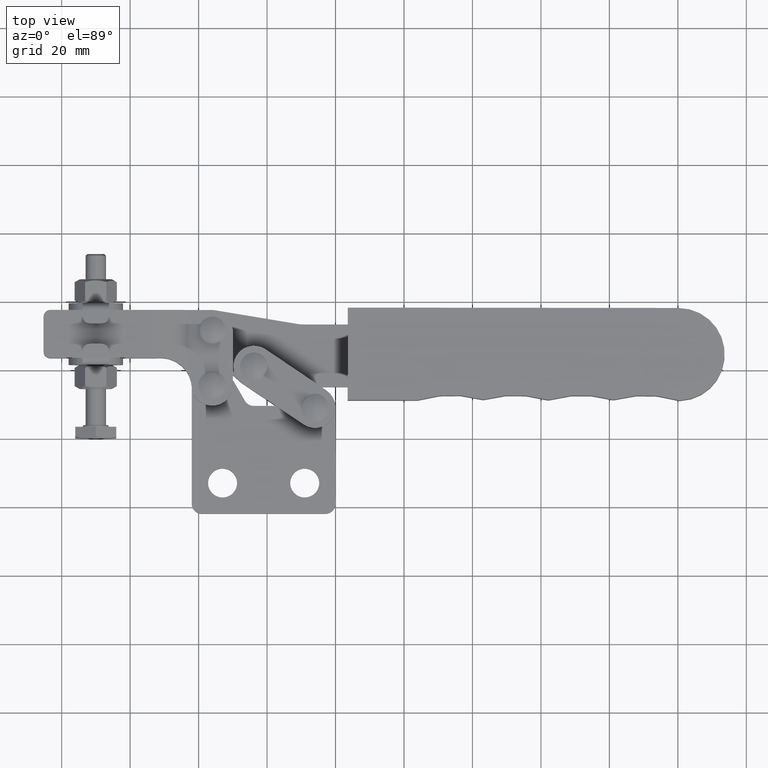
[diagram: clean part render]
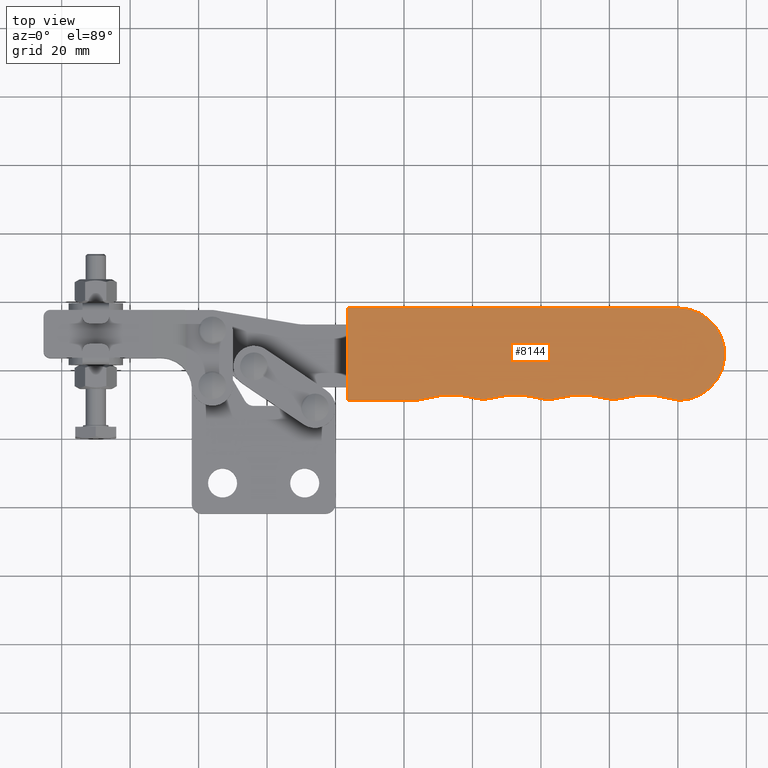
[diagram: same view with one face highlighted and labeled with its STEP entity id]
A machine part, top view. The second image highlights one B-rep face of the part: STEP entity #8144.
In plain terms, the highlighted planar face has unit normal (0, 0, 1).
Its self-contained STEP definition (entity closure, byte-faithful):
#44 = CARTESIAN_POINT ( 'NONE',  ( 3.545043072267930000, 11.15532445065293700, 6.999999999999999100 ) ) ;
#56 = LINE ( 'NONE', #7850, #3553 ) ;
#137 = ORIENTED_EDGE ( 'NONE', *, *, #1596, .T. ) ;
#262 = CIRCLE ( 'NONE', #8166, 31.99999999999996100 ) ;
#466 = CARTESIAN_POINT ( 'NONE',  ( 63.00042372646179000, 11.33479812045718500, 6.999999999999999100 ) ) ;
#702 = ORIENTED_EDGE ( 'NONE', *, *, #1793, .T. ) ;
#712 = ORIENTED_EDGE ( 'NONE', *, *, #4342, .T. ) ;
#840 = VECTOR ( 'NONE', #7962, 1000.000000000000100 ) ;
#897 = ORIENTED_EDGE ( 'NONE', *, *, #6737, .T. ) ;
#981 = AXIS2_PLACEMENT_3D ( 'NONE', #5616, #4913, #1039 ) ;
#1014 = CARTESIAN_POINT ( 'NONE',  ( 43.97827483815525100, 11.42371436769448700, 6.999999999999999100 ) ) ;
#1039 = DIRECTION ( 'NONE',  ( 0.9999993301781756600, -0.001157429565958452200, 0.0000000000000000000 ) ) ;
#1191 = CARTESIAN_POINT ( 'NONE',  ( 90.50966387902275300, -19.46204103600163300, 6.999999999999999100 ) ) ;
#1210 = ORIENTED_EDGE ( 'NONE', *, *, #8665, .T. ) ;
#1219 = ORIENTED_EDGE ( 'NONE', *, *, #1501, .T. ) ;
#1318 = ORIENTED_EDGE ( 'NONE', *, *, #6232, .T. ) ;
#1409 = DIRECTION ( 'NONE',  ( 0.0000000000000000000, 0.0000000000000000000, 1.000000000000000000 ) ) ;
#1501 = EDGE_CURVE ( 'NONE', #2984, #2148, #2331, .T. ) ;
#1504 = AXIS2_PLACEMENT_3D ( 'NONE', #6326, #1773, #3520 ) ;
#1540 = CARTESIAN_POINT ( 'NONE',  ( 100.2059568025393000, 38.04346426149196200, 6.999999999999999100 ) ) ;
#1596 = EDGE_CURVE ( 'NONE', #7579, #7498, #262, .T. ) ;
#1773 = DIRECTION ( 'NONE',  ( 0.0000000000000000000, 0.0000000000000000000, 1.000000000000000000 ) ) ;
#1793 = EDGE_CURVE ( 'NONE', #3628, #6571, #4909, .T. ) ;
#1847 = ORIENTED_EDGE ( 'NONE', *, *, #6397, .T. ) ;
#1857 = ORIENTED_EDGE ( 'NONE', *, *, #3375, .T. ) ;
#1872 = CARTESIAN_POINT ( 'NONE',  ( 3.576293670548810400, 38.15530636546370900, 6.999999999999999100 ) ) ;
#1950 = ORIENTED_EDGE ( 'NONE', *, *, #2554, .T. ) ;
#2093 = CARTESIAN_POINT ( 'NONE',  ( 23.72323925246362500, 11.13196959416267600, 6.999999999999999100 ) ) ;
#2109 = AXIS2_PLACEMENT_3D ( 'NONE', #3399, #8463, #2293 ) ;
#2148 = VERTEX_POINT ( 'NONE', #5811 ) ;
#2173 = CARTESIAN_POINT ( 'NONE',  ( 80.37191809346006700, 11.38159126076358200, 6.999999999999999100 ) ) ;
#2210 = CARTESIAN_POINT ( 'NONE',  ( 61.34961434249166200, 11.33670881732599700, 6.999999999999999100 ) ) ;
#2257 = ORIENTED_EDGE ( 'NONE', *, *, #4791, .T. ) ;
#2293 = DIRECTION ( 'NONE',  ( 0.9999993301781756600, -0.001157429565958487100, 0.0000000000000000000 ) ) ;
#2331 = CIRCLE ( 'NONE', #7056, 31.99999999999991800 ) ;
#2395 = EDGE_LOOP ( 'NONE', ( #897, #1318, #137, #1950, #1210, #1847, #3534, #702, #2439, #1219, #1857, #2257, #712 ) ) ;
#2424 = VERTEX_POINT ( 'NONE', #2173 ) ;
#2439 = ORIENTED_EDGE ( 'NONE', *, *, #6506, .T. ) ;
#2554 = EDGE_CURVE ( 'NONE', #7498, #3831, #3251, .T. ) ;
#2610 = DIRECTION ( 'NONE',  ( 0.9999993301781756600, -0.001157429565958546100, 0.0000000000000000000 ) ) ;
#2926 = DIRECTION ( 'NONE',  ( 0.9999993301781755500, -0.001157429565958516300, 0.0000000000000000000 ) ) ;
#2984 = VERTEX_POINT ( 'NONE', #3469 ) ;
#2986 = CIRCLE ( 'NONE', #3973, 3.000000000000076400 ) ;
#3032 = DIRECTION ( 'NONE',  ( 0.0000000000000000000, 0.0000000000000000000, 1.000000000000000000 ) ) ;
#3070 = PLANE ( 'NONE',  #3698 ) ;
#3251 = CIRCLE ( 'NONE', #981, 3.000000000000145700 ) ;
#3375 = EDGE_CURVE ( 'NONE', #2148, #6749, #3836, .T. ) ;
#3399 = CARTESIAN_POINT ( 'NONE',  ( 43.17845472933616700, 14.31513059396301900, 6.999999999999999100 ) ) ;
#3415 = DIRECTION ( 'NONE',  ( 0.9999993301781756600, -0.001157429565958478800, 0.0000000000000000000 ) ) ;
#3469 = CARTESIAN_POINT ( 'NONE',  ( 24.58749263178653500, 11.25811026151241600, 6.999999999999999100 ) ) ;
#3520 = DIRECTION ( 'NONE',  ( 0.9999993301781755500, -0.001157429565958496800, 0.0000000000000000000 ) ) ;
#3534 = ORIENTED_EDGE ( 'NONE', *, *, #4261, .T. ) ;
#3539 = VERTEX_POINT ( 'NONE', #7027 ) ;
#3553 = VECTOR ( 'NONE', #6996, 1000.000000000000100 ) ;
#3628 = VERTEX_POINT ( 'NONE', #44 ) ;
#3641 = DIRECTION ( 'NONE',  ( 0.0000000000000000000, 0.0000000000000000000, 1.000000000000000000 ) ) ;
#3698 = AXIS2_PLACEMENT_3D ( 'NONE', #3785, #3032, #2926 ) ;
#3785 = CARTESIAN_POINT ( 'NONE',  ( 71.76913214523121100, -19.44035017596214100, 6.999999999999999100 ) ) ;
#3791 = AXIS2_PLACEMENT_3D ( 'NONE', #5237, #5682, #4359 ) ;
#3831 = VERTEX_POINT ( 'NONE', #5330 ) ;
#3836 = CIRCLE ( 'NONE', #2109, 3.000000000000055500 ) ;
#3888 = CARTESIAN_POINT ( 'NONE',  ( 33.76915759846050900, -19.39636785245572200, 6.999999999999999100 ) ) ;
#3960 = DIRECTION ( 'NONE',  ( 0.9999993301781756600, -0.001157429565958484500, 0.0000000000000000000 ) ) ;
#3973 = AXIS2_PLACEMENT_3D ( 'NONE', #5801, #3641, #3415 ) ;
#4261 = EDGE_CURVE ( 'NONE', #3539, #3628, #56, .T. ) ;
#4342 = EDGE_CURVE ( 'NONE', #8379, #4863, #5697, .T. ) ;
#4359 = DIRECTION ( 'NONE',  ( 0.9999993301781756600, -0.001157429565958547600, 0.0000000000000000000 ) ) ;
#4598 = AXIS2_PLACEMENT_3D ( 'NONE', #6851, #8395, #7784 ) ;
#4600 = DIRECTION ( 'NONE',  ( -0.0000000000000000000, 0.0000000000000000000, -1.000000000000000000 ) ) ;
#4791 = EDGE_CURVE ( 'NONE', #6749, #8379, #6682, .T. ) ;
#4838 = DIRECTION ( 'NONE',  ( 0.0000000000000000000, 0.0000000000000000000, 1.000000000000000000 ) ) ;
#4863 = VERTEX_POINT ( 'NONE', #466 ) ;
#4909 = LINE ( 'NONE', #6271, #8556 ) ;
#4913 = DIRECTION ( 'NONE',  ( 0.0000000000000000000, 0.0000000000000000000, 1.000000000000000000 ) ) ;
#4930 = CARTESIAN_POINT ( 'NONE',  ( 81.97824938492850300, 11.37973204418876500, 6.999999999999999100 ) ) ;
#4944 = CARTESIAN_POINT ( 'NONE',  ( 62.17835731220214500, 14.21996827324658200, 6.999999999999999100 ) ) ;
#4946 = AXIS2_PLACEMENT_3D ( 'NONE', #4944, #1409, #6138 ) ;
#5029 = DIRECTION ( 'NONE',  ( 0.9999993301781756600, -0.001157429565958547600, 0.0000000000000000000 ) ) ;
#5127 = CIRCLE ( 'NONE', #8393, 3.000000000000062200 ) ;
#5237 = CARTESIAN_POINT ( 'NONE',  ( 71.76913214523121100, -19.44035017596214100, 6.999999999999999100 ) ) ;
#5330 = CARTESIAN_POINT ( 'NONE',  ( 100.7187293448377700, 11.05381816686496200, 6.999999999999999100 ) ) ;
#5616 = CARTESIAN_POINT ( 'NONE',  ( 100.6013076022957300, 14.05151930846985500, 6.999999999999999100 ) ) ;
#5648 = CARTESIAN_POINT ( 'NONE',  ( 99.73630956887225800, 11.17892842180075500, 6.999999999999999100 ) ) ;
#5682 = DIRECTION ( 'NONE',  ( -0.0000000000000000000, 0.0000000000000000000, -1.000000000000000000 ) ) ;
#5697 = CIRCLE ( 'NONE', #4946, 3.000000000000090200 ) ;
#5801 = CARTESIAN_POINT ( 'NONE',  ( 23.72671154116149900, 14.13196758469720600, 6.999999999999999100 ) ) ;
#5811 = CARTESIAN_POINT ( 'NONE',  ( 42.37194354669226500, 11.42557358426921600, 6.999999999999999100 ) ) ;
#6080 = VERTEX_POINT ( 'NONE', #1540 ) ;
#6138 = DIRECTION ( 'NONE',  ( 0.9999993301781756600, -0.001157429565958473600, 0.0000000000000000000 ) ) ;
#6232 = EDGE_CURVE ( 'NONE', #2424, #7579, #5127, .T. ) ;
#6271 = CARTESIAN_POINT ( 'NONE',  ( 23.72323925246362500, 11.13196959416267600, 6.999999999999999100 ) ) ;
#6326 = CARTESIAN_POINT ( 'NONE',  ( 100.1903315033988700, 24.54347330408646100, 6.999999999999999100 ) ) ;
#6397 = EDGE_CURVE ( 'NONE', #6080, #3539, #8472, .T. ) ;
#6506 = EDGE_CURVE ( 'NONE', #6571, #2984, #2986, .T. ) ;
#6571 = VERTEX_POINT ( 'NONE', #2093 ) ;
#6682 = CIRCLE ( 'NONE', #4598, 32.00000000000000000 ) ;
#6737 = EDGE_CURVE ( 'NONE', #4863, #2424, #6906, .T. ) ;
#6749 = VERTEX_POINT ( 'NONE', #1014 ) ;
#6851 = CARTESIAN_POINT ( 'NONE',  ( 52.50968933225226500, -19.41805871249520300, 6.999999999999999100 ) ) ;
#6906 = CIRCLE ( 'NONE', #3791, 31.99999999999991800 ) ;
#6996 = DIRECTION ( 'NONE',  ( -0.001157429565958516300, -0.9999993301781755500, 0.0000000000000000000 ) ) ;
#7027 = CARTESIAN_POINT ( 'NONE',  ( 3.576293670548810400, 38.15530636546370900, 6.999999999999999100 ) ) ;
#7056 = AXIS2_PLACEMENT_3D ( 'NONE', #3888, #8189, #5029 ) ;
#7498 = VERTEX_POINT ( 'NONE', #5648 ) ;
#7553 = CIRCLE ( 'NONE', #1504, 13.50000000000013500 ) ;
#7570 = FACE_OUTER_BOUND ( 'NONE', #2395, .T. ) ;
#7579 = VERTEX_POINT ( 'NONE', #4930 ) ;
#7774 = DIRECTION ( 'NONE',  ( 0.9999993301781755500, -0.001157429565958516300, 0.0000000000000000000 ) ) ;
#7784 = DIRECTION ( 'NONE',  ( 0.9999993301781756600, -0.001157429565958544500, 0.0000000000000000000 ) ) ;
#7850 = CARTESIAN_POINT ( 'NONE',  ( 3.576293670548810400, 38.15530636546370900, 6.999999999999999100 ) ) ;
#7962 = DIRECTION ( 'NONE',  ( -0.9999993301781755500, 0.001157429565957367300, -0.0000000000000000000 ) ) ;
#8144 = ADVANCED_FACE ( 'NONE', ( #7570 ), #3070, .T. ) ;
#8166 = AXIS2_PLACEMENT_3D ( 'NONE', #1191, #4600, #2610 ) ;
#8189 = DIRECTION ( 'NONE',  ( -0.0000000000000000000, 0.0000000000000000000, -1.000000000000000000 ) ) ;
#8296 = CARTESIAN_POINT ( 'NONE',  ( 81.17842927610686800, 14.27114827045659800, 6.999999999999999100 ) ) ;
#8379 = VERTEX_POINT ( 'NONE', #2210 ) ;
#8393 = AXIS2_PLACEMENT_3D ( 'NONE', #8296, #4838, #3960 ) ;
#8395 = DIRECTION ( 'NONE',  ( -0.0000000000000000000, 0.0000000000000000000, -1.000000000000000000 ) ) ;
#8463 = DIRECTION ( 'NONE',  ( 0.0000000000000000000, 0.0000000000000000000, 1.000000000000000000 ) ) ;
#8472 = LINE ( 'NONE', #1872, #840 ) ;
#8556 = VECTOR ( 'NONE', #7774, 1000.000000000000100 ) ;
#8665 = EDGE_CURVE ( 'NONE', #3831, #6080, #7553, .T. ) ;